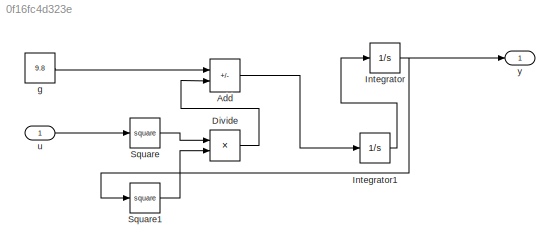
MODEL slx_0f16fc4d323e
KIND model
CONFIG AbsTol = auto
CONFIG EnableMultiTasking = off
CONFIG FixedStep = auto
CONFIG MaxStep = auto
CONFIG MinStep = auto
CONFIG RelTol = 1e-3
CONFIG SampleTimeConstraint = Unconstrained
CONFIG SolverName = VariableStepAuto
CONFIG StartTime = 0.0
CONFIG StopTime = 10.0
BLOCK [Sum] Add
  IconShape = rectangular
  Inputs = +-
  Ports = [2, 1]
BLOCK [Product] Divide
  Inputs = */
  Ports = [2, 1]
BLOCK [Integrator] Integrator
  Ports = [1, 1]
BLOCK [Integrator] Integrator1
  Ports = [1, 1]
BLOCK [Math] Square
  Operator = square
  Ports = [1, 1]
BLOCK [Math] Square1
  Operator = square
  Ports = [1, 1]
BLOCK [Constant] g
  Value = 9.8
BLOCK [Inport] u
BLOCK [Outport] y
LINE Add:1 -> Integrator1:1
LINE Divide:1 -> Add:2
LINE Integrator1:1 -> Integrator:1
NET Integrator:1 -> Square1:1, y:1
LINE Square1:1 -> Divide:2
LINE Square:1 -> Divide:1
LINE g:1 -> Add:1
LINE u:1 -> Square:1
note: NET lines group one-source signal fan-out (src -> all destinations, sorted); 1:1 wires keep LINE
